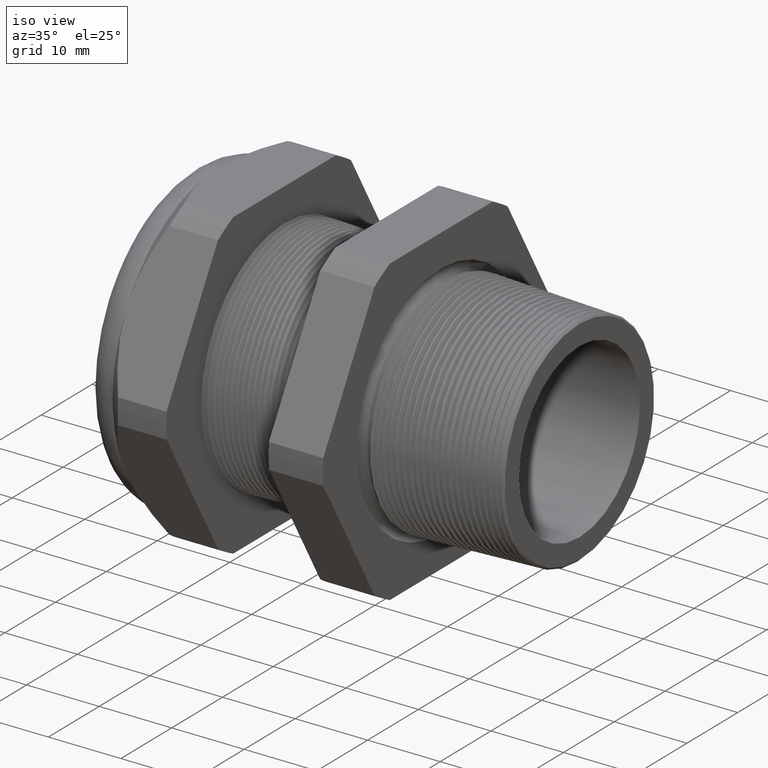
[diagram: clean part render]
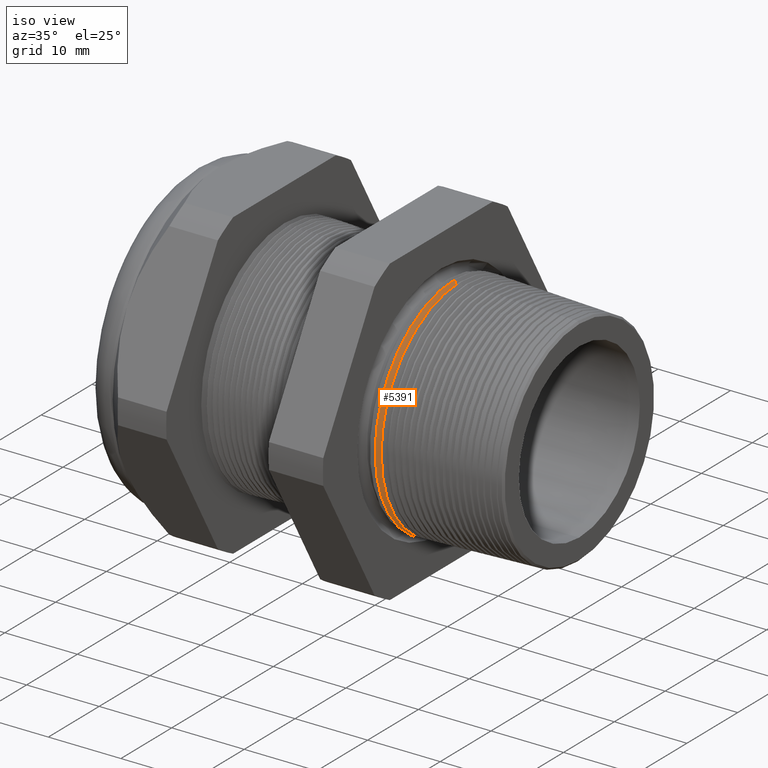
[diagram: same view with one face highlighted and labeled with its STEP entity id]
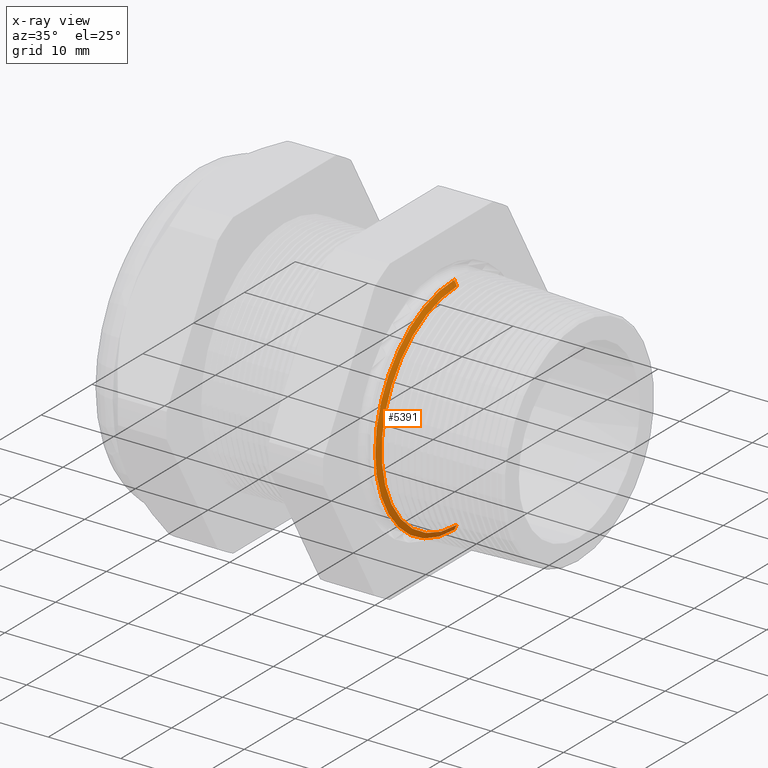
[diagram: x-ray of the same camera — body ghosted, the highlighted face saturated]
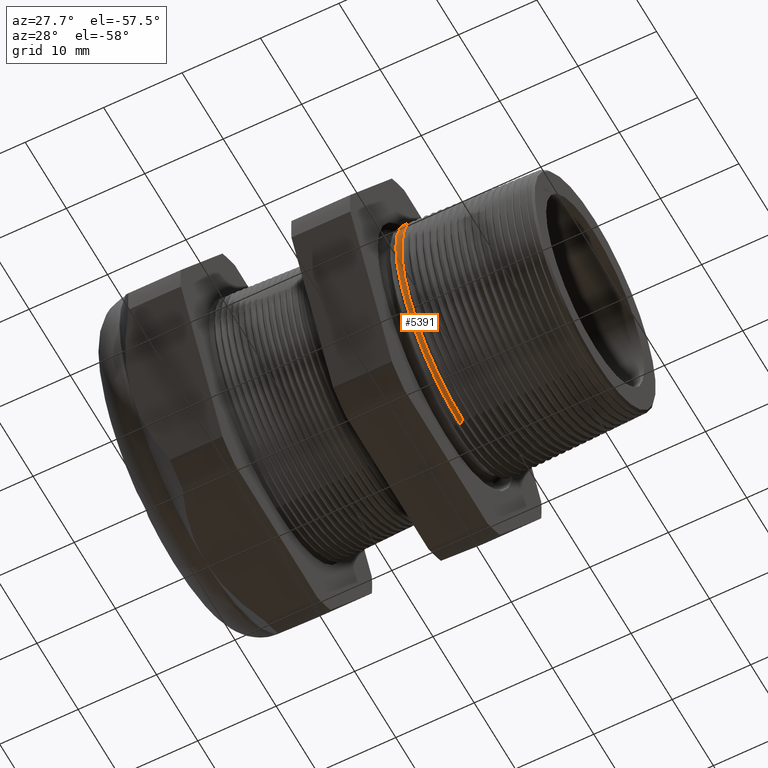
[diagram: same view with one face highlighted and labeled with its STEP entity id]
A machine part, iso view. The second image highlights one B-rep face of the part: STEP entity #5391.
The next image is the same camera in x-ray: the body ghosted, the highlighted face saturated — about 4% of this face is hidden behind the body in this view.
A second angle (auxiliary view) of the same face is appended — the face is thin or edge-on in the first view.
In plain terms, the highlighted conical surface has half-angle 62 deg.
Its self-contained STEP definition (entity closure, byte-faithful):
#25 = VERTEX_POINT ( 'NONE', #5900 ) ;
#28 = VERTEX_POINT ( 'NONE', #5898 ) ;
#62 = VERTEX_POINT ( 'NONE', #5957 ) ;
#217 = EDGE_CURVE ( 'NONE', #28, #62, #6223, .T. ) ;
#280 = VERTEX_POINT ( 'NONE', #6357 ) ;
#281 = EDGE_CURVE ( 'NONE', #25, #280, #6356, .T. ) ;
#1631 = CARTESIAN_POINT ( 'NONE',  ( -0.2237370280109210500, 0.0000000000000000000, 0.0000000000000000000 ) ) ;
#1632 = AXIS2_PLACEMENT_3D ( 'NONE', #1631, #1695, #1694 ) ;
#1633 = CIRCLE ( 'NONE', #1632, 0.5847201454394180800 ) ;
#1634 = DIRECTION ( 'NONE',  ( 0.0000000000000000000, 0.0000000000000000000, 1.000000000000000000 ) ) ;
#1635 = DIRECTION ( 'NONE',  ( -1.000000000000000000, 0.0000000000000000000, 0.0000000000000000000 ) ) ;
#1636 = AXIS2_PLACEMENT_3D ( 'NONE', #1643, #1635, #1634 ) ;
#1637 = CONICAL_SURFACE ( 'NONE', #1636, 0.6153063472644639800, 1.082104136236471400 ) ;
#1638 = FACE_OUTER_BOUND ( 'NONE', #5392, .T. ) ;
#1643 = CARTESIAN_POINT ( 'NONE',  ( -0.2399999999999999600, 0.0000000000000000000, 0.0000000000000000000 ) ) ;
#1661 = EDGE_CURVE ( 'NONE', #280, #62, #6652, .T. ) ;
#1694 = DIRECTION ( 'NONE',  ( 0.0000000000000000000, 0.0000000000000000000, -1.000000000000000000 ) ) ;
#1695 = DIRECTION ( 'NONE',  ( 1.000000000000000000, 0.0000000000000000000, 0.0000000000000000000 ) ) ;
#5391 = ADVANCED_FACE ( 'NONE', ( #1638 ), #1637, .T. ) ;
#5392 = EDGE_LOOP ( 'NONE', ( #5393, #5394, #5396, #5397 ) ) ;
#5393 = ORIENTED_EDGE ( 'NONE', *, *, #217, .F. ) ;
#5394 = ORIENTED_EDGE ( 'NONE', *, *, #5395, .F. ) ;
#5395 = EDGE_CURVE ( 'NONE', #25, #28, #1633, .T. ) ;
#5396 = ORIENTED_EDGE ( 'NONE', *, *, #281, .T. ) ;
#5397 = ORIENTED_EDGE ( 'NONE', *, *, #1661, .T. ) ;
#5898 = CARTESIAN_POINT ( 'NONE',  ( -0.2237370280109210500, 7.332791874244318600E-017, -0.5847201454394180800 ) ) ;
#5900 = CARTESIAN_POINT ( 'NONE',  ( -0.2237370280109210500, 0.0000000000000000000, 0.5847201454394180800 ) ) ;
#5957 = CARTESIAN_POINT ( 'NONE',  ( -0.2386756710796202900, 7.505351475082163300E-017, -0.6128156468150823800 ) ) ;
#6220 = DIRECTION ( 'NONE',  ( -0.4694715627859021900, 1.081298943409537900E-016, -0.8829475928589208800 ) ) ;
#6221 = VECTOR ( 'NONE', #6220, 39.37007874015748100 ) ;
#6222 = CARTESIAN_POINT ( 'NONE',  ( -0.2399999999999999600, 7.535329486724755800E-017, -0.6153063472644639800 ) ) ;
#6223 = LINE ( 'NONE', #6222, #6221 ) ;
#6353 = DIRECTION ( 'NONE',  ( -0.4694715627859021900, 0.0000000000000000000, 0.8829475928589208800 ) ) ;
#6354 = VECTOR ( 'NONE', #6353, 39.37007874015748100 ) ;
#6355 = CARTESIAN_POINT ( 'NONE',  ( -0.2399999999999999600, 0.0000000000000000000, 0.6153063472644639800 ) ) ;
#6356 = LINE ( 'NONE', #6355, #6354 ) ;
#6357 = CARTESIAN_POINT ( 'NONE',  ( -0.2386756710796202900, 0.0000000000000000000, 0.6128156468150823800 ) ) ;
#6648 = DIRECTION ( 'NONE',  ( 0.0000000000000000000, 0.0000000000000000000, 1.000000000000000000 ) ) ;
#6649 = DIRECTION ( 'NONE',  ( 1.000000000000000000, 0.0000000000000000000, 0.0000000000000000000 ) ) ;
#6650 = CARTESIAN_POINT ( 'NONE',  ( -0.2386756710796202900, 0.0000000000000000000, 0.0000000000000000000 ) ) ;
#6651 = AXIS2_PLACEMENT_3D ( 'NONE', #6650, #6649, #6648 ) ;
#6652 = CIRCLE ( 'NONE', #6651, 0.6128156468150823800 ) ;